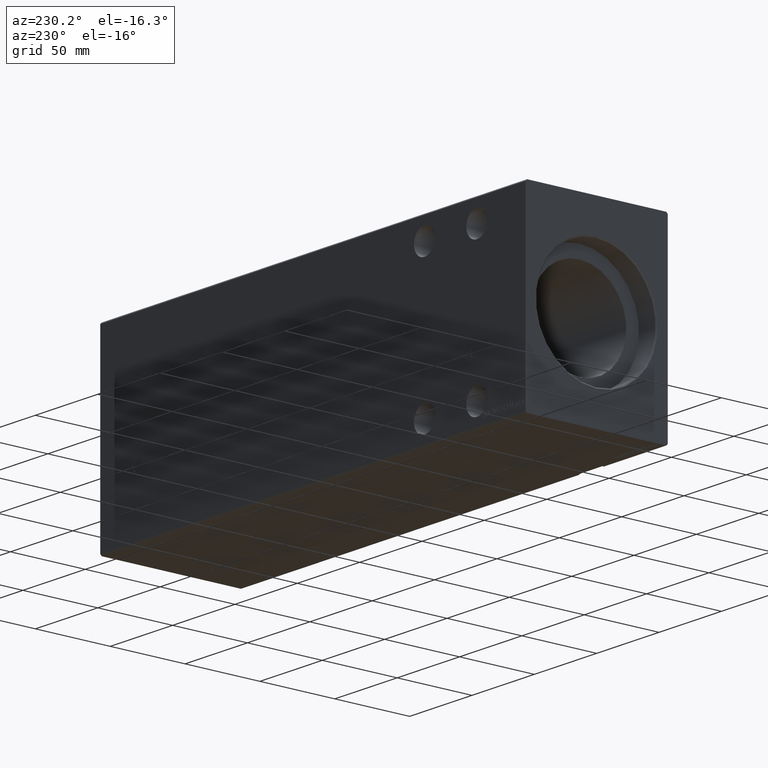
[diagram: clean part render]
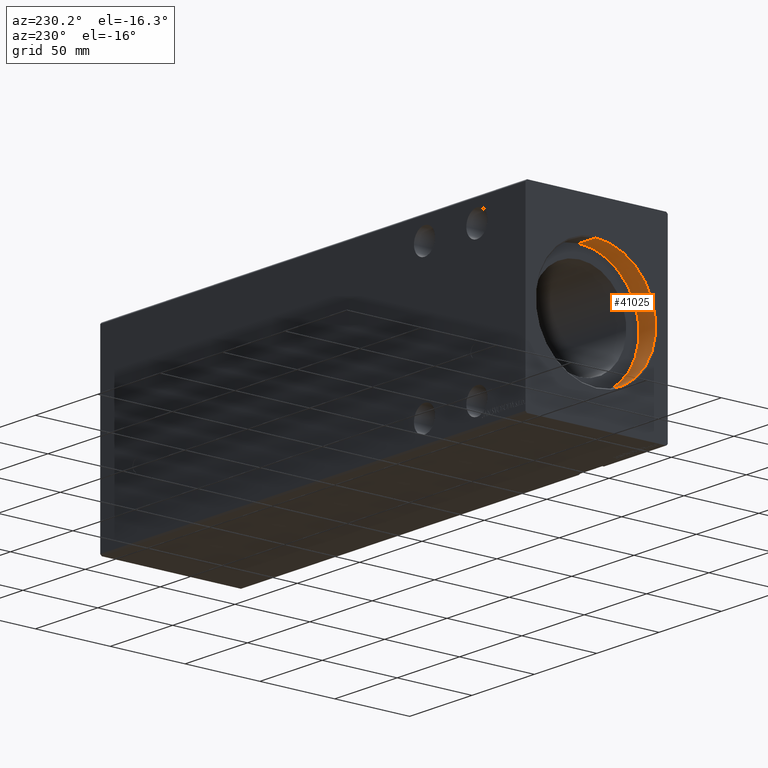
[diagram: same view with one face highlighted and labeled with its STEP entity id]
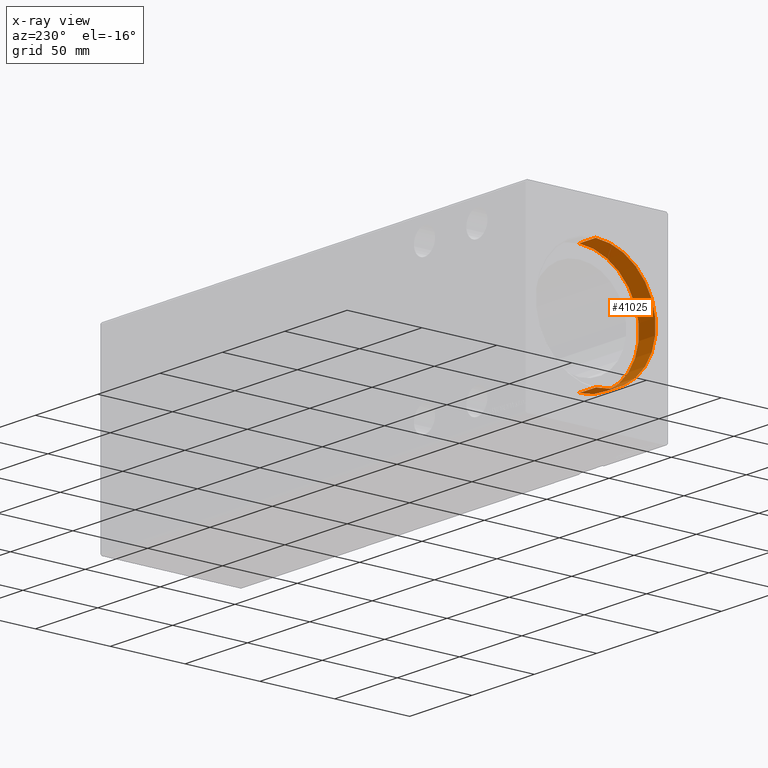
[diagram: x-ray of the same camera — body ghosted, the highlighted face saturated]
A machine part, auxiliary view. The second image highlights one B-rep face of the part: STEP entity #41025.
The next image is the same camera in x-ray: the body ghosted, the highlighted face saturated — about 0% of this face is hidden behind the body in this view.
In plain terms, the highlighted cylindrical surface (partial cylindrical patch) has radius 40 mm, axis along (-1, -0, -0).
Its self-contained STEP definition (entity closure, byte-faithful):
#2068 = EDGE_CURVE ( 'NONE', #29077, #2778, #14846, .T. ) ;
#2098 = CYLINDRICAL_SURFACE ( 'NONE', #19600, 40.00000000000000000 ) ;
#2778 = VERTEX_POINT ( 'NONE', #10824 ) ;
#3679 = AXIS2_PLACEMENT_3D ( 'NONE', #14491, #11300, #24290 ) ;
#4876 = CARTESIAN_POINT ( 'NONE',  ( 0.6999999999999297895, 4.898587196589413026E-15, -40.00000000000000000 ) ) ;
#6076 = VECTOR ( 'NONE', #33978, 1000.000000000000000 ) ;
#6951 = DIRECTION ( 'NONE',  ( -1.000000000000000000, -0.000000000000000000, -0.000000000000000000 ) ) ;
#9702 = ORIENTED_EDGE ( 'NONE', *, *, #2068, .F. ) ;
#9790 = CIRCLE ( 'NONE', #3679, 40.00000000000000000 ) ;
#10318 = CARTESIAN_POINT ( 'NONE',  ( 14.00000000000000000, 4.898587196589413026E-15, -40.00000000000000000 ) ) ;
#10824 = CARTESIAN_POINT ( 'NONE',  ( 0.6999999999999297895, 0.000000000000000000, 40.00000000000000000 ) ) ;
#11300 = DIRECTION ( 'NONE',  ( -1.000000000000000000, 0.000000000000000000, 0.000000000000000000 ) ) ;
#12051 = CARTESIAN_POINT ( 'NONE',  ( 14.00000000000000000, 0.000000000000000000, 0.000000000000000000 ) ) ;
#12111 = ORIENTED_EDGE ( 'NONE', *, *, #41820, .T. ) ;
#12378 = DIRECTION ( 'NONE',  ( 0.000000000000000000, 0.000000000000000000, -1.000000000000000000 ) ) ;
#14477 = CARTESIAN_POINT ( 'NONE',  ( 14.00000000000000000, 0.000000000000000000, 40.00000000000000000 ) ) ;
#14491 = CARTESIAN_POINT ( 'NONE',  ( 14.00000000000000000, 0.000000000000000000, 0.000000000000000000 ) ) ;
#14846 = LINE ( 'NONE', #40353, #6076 ) ;
#15057 = VERTEX_POINT ( 'NONE', #18351 ) ;
#16189 = AXIS2_PLACEMENT_3D ( 'NONE', #28556, #41513, #12378 ) ;
#16315 = VERTEX_POINT ( 'NONE', #4876 ) ;
#17733 = ORIENTED_EDGE ( 'NONE', *, *, #21376, .F. ) ;
#18351 = CARTESIAN_POINT ( 'NONE',  ( 14.00000000000000000, 4.898587196589413026E-15, -40.00000000000000000 ) ) ;
#19600 = AXIS2_PLACEMENT_3D ( 'NONE', #12051, #34800, #28017 ) ;
#21376 = EDGE_CURVE ( 'NONE', #15057, #29077, #9790, .T. ) ;
#24290 = DIRECTION ( 'NONE',  ( 0.000000000000000000, 0.000000000000000000, 1.000000000000000000 ) ) ;
#24401 = VECTOR ( 'NONE', #6951, 1000.000000000000000 ) ;
#26403 = CIRCLE ( 'NONE', #16189, 40.00000000000000000 ) ;
#26689 = LINE ( 'NONE', #10318, #24401 ) ;
#28017 = DIRECTION ( 'NONE',  ( 0.000000000000000000, 0.000000000000000000, 1.000000000000000000 ) ) ;
#28556 = CARTESIAN_POINT ( 'NONE',  ( 0.6999999999999297895, 0.000000000000000000, 0.000000000000000000 ) ) ;
#29077 = VERTEX_POINT ( 'NONE', #14477 ) ;
#33978 = DIRECTION ( 'NONE',  ( -1.000000000000000000, -0.000000000000000000, -0.000000000000000000 ) ) ;
#34800 = DIRECTION ( 'NONE',  ( -1.000000000000000000, -0.000000000000000000, -0.000000000000000000 ) ) ;
#35274 = EDGE_CURVE ( 'NONE', #16315, #2778, #26403, .T. ) ;
#37722 = EDGE_LOOP ( 'NONE', ( #17733, #12111, #37969, #9702 ) ) ;
#37969 = ORIENTED_EDGE ( 'NONE', *, *, #35274, .T. ) ;
#40353 = CARTESIAN_POINT ( 'NONE',  ( 14.00000000000000000, 0.000000000000000000, 40.00000000000000000 ) ) ;
#41025 = ADVANCED_FACE ( 'NONE', ( #41185 ), #2098, .F. ) ;
#41185 = FACE_OUTER_BOUND ( 'NONE', #37722, .T. ) ;
#41513 = DIRECTION ( 'NONE',  ( -1.000000000000000000, 0.000000000000000000, 0.000000000000000000 ) ) ;
#41820 = EDGE_CURVE ( 'NONE', #15057, #16315, #26689, .T. ) ;